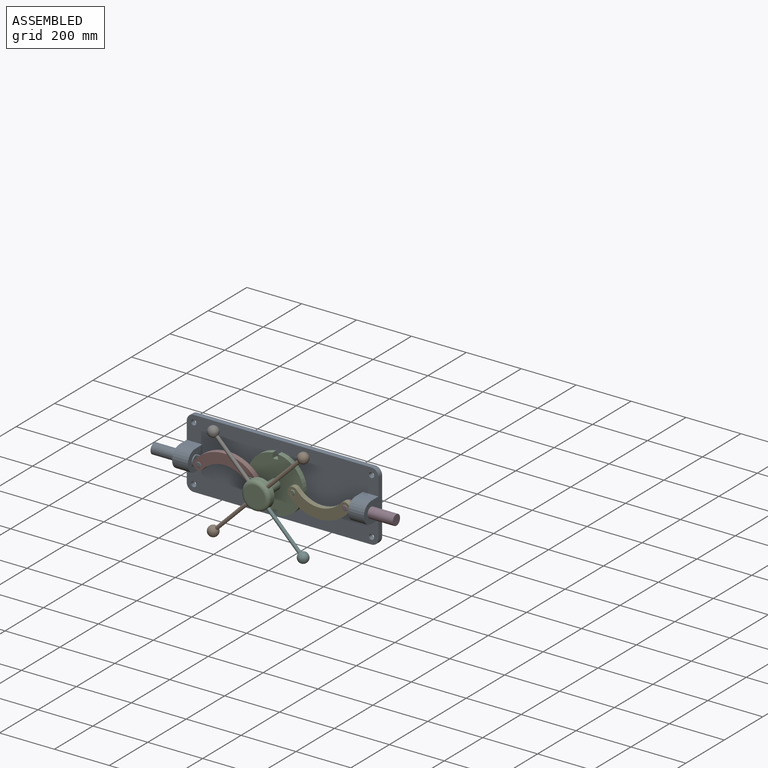
[diagram: assembled view]
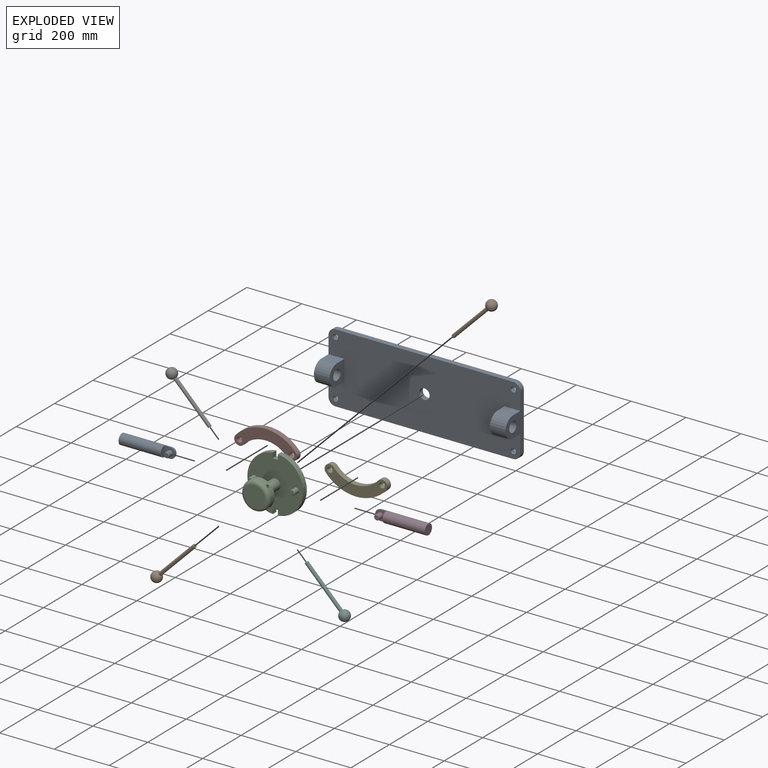
[diagram: exploded view]
GUIDED TOUR — MATED ASSEMBLY (Onshape document 58ec21740626050f5efaa59a, AutoMate assembly 58ec21740626050f5efaa59a_ca36bacddb77515ba9121557_3a69641fb0e58b1cf855f0f5_default)

This assembly has 10 components, labeled P0..P9 below (a component is one placed occurrence of a part; the same part can appear more than once), held together by 11 mates. A mate is a constraint between two components; its type names the relative motion it leaves free:
  CYLINDRICAL — leaves both rotation about and translation along the listed axis free,
  FASTENED — locks the two components together rigidly (no relative motion),
  REVOLUTE — leaves rotation about the listed axis free (a hinge).
Axis/direction vectors are unit vectors and 'through' points are millimeter coordinates, both in the assembly's world frame.

MATES
  1. REVOLUTE "Revolute 4": P4 <-> P2, axis (0.000, 1.000, 0.000) through (38.64, 2.72, 59.60) mm
  2. REVOLUTE "Revolute 1": P2 <-> P0, axis (0.000, 1.000, 0.000) through (-37.56, 40.82, 59.60) mm
  3. REVOLUTE "Revolute 2": P7 <-> P2, axis (0.000, 1.000, 0.000) through (-113.76, 2.72, 59.60) mm
  4. CYLINDRICAL "Cylindrical 2": P8 <-> P0, axis (1.000, 0.000, 0.000) through (-391.55, 2.72, 59.60) mm
  5. FASTENED "Fastened 3": P5 <-> P2, direction (-0.707, 0.000, 0.707) through (-12.95, -86.18, 34.99) mm
  6. REVOLUTE "Revolute 3": P7 <-> P8, axis (0.000, 1.000, 0.000) through (-304.26, 2.72, 59.60) mm
  7. FASTENED "Fastened 1": P2 <-> P1, direction (-0.707, 0.000, -0.707) through (-62.17, -86.18, 34.99) mm
  8. CYLINDRICAL "Cylindrical 1": P3 <-> P0, axis (-1.000, 0.000, 0.000) through (316.43, 2.72, 59.60) mm
  9. REVOLUTE "Revolute 5": P4 <-> P3, axis (0.000, 1.000, 0.000) through (229.14, 2.72, 59.60) mm
  10. FASTENED "Fastened 2": P2 <-> P6, direction (-0.707, 0.000, 0.707) through (-62.17, -86.18, 84.20) mm
  11. FASTENED "Fastened 4": P2 <-> P9, direction (0.707, 0.000, 0.707) through (-12.95, -86.18, 84.20) mm

ASSEMBLY ORDER
  1. P2 — the base component [order heuristic]
  2. P0 — core [order heuristic]
  3. P4 — core [order heuristic]
  4. P7 — core [order heuristic]
  5. P3 — core [order heuristic]
  6. P8 — core [order heuristic]
  7. P1 [order verified]
  8. P6 [order verified]
  9. P9 [order verified]
  10. P5 [order verified]
Order-tag legend:
  [order verified] — this step's position reverses a verified removal order: the component was checked to insert without passing through the ones already placed.
  [order heuristic] — the first 6 components form the assembly's core: parts whose collision-free extraction could not be verified, listed in mate-graph order.

Of the 10 components, 3 carry the full construction recipe — the FeatureScript program that regenerates the part's solid from scratch; the rest are supplied as boundary geometry only.
Each toured component is shown spotlighted twice — in the assembled view, then in the exploded view, where a leader line traces a displaced component back to its assembled socket (saturated green if recipe-attached, orange if geometry-only; every other component desaturated gray) — followed by its recipe or geometry summary and the mates that hold it.
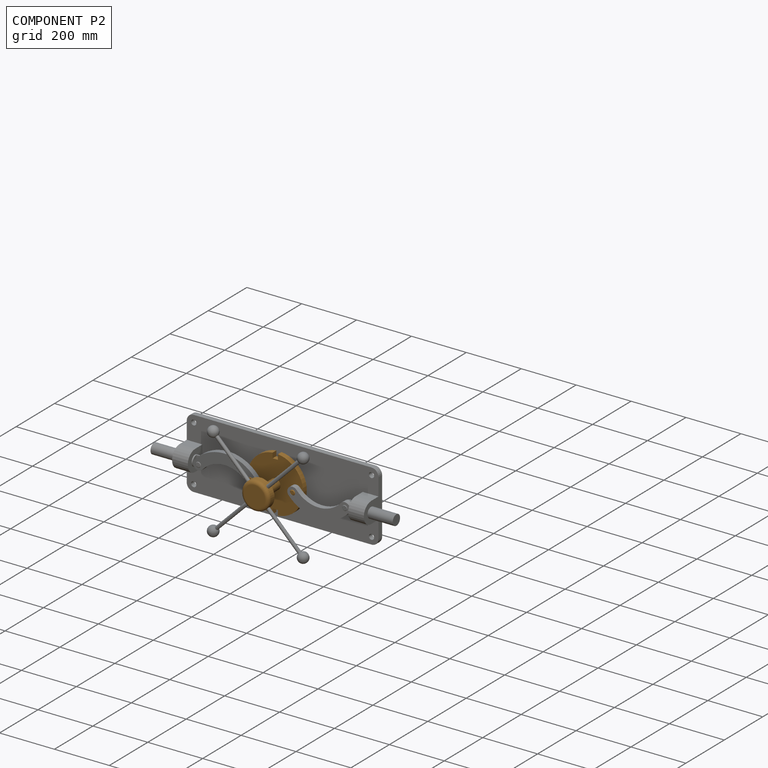
[diagram: component P2 — assembled]
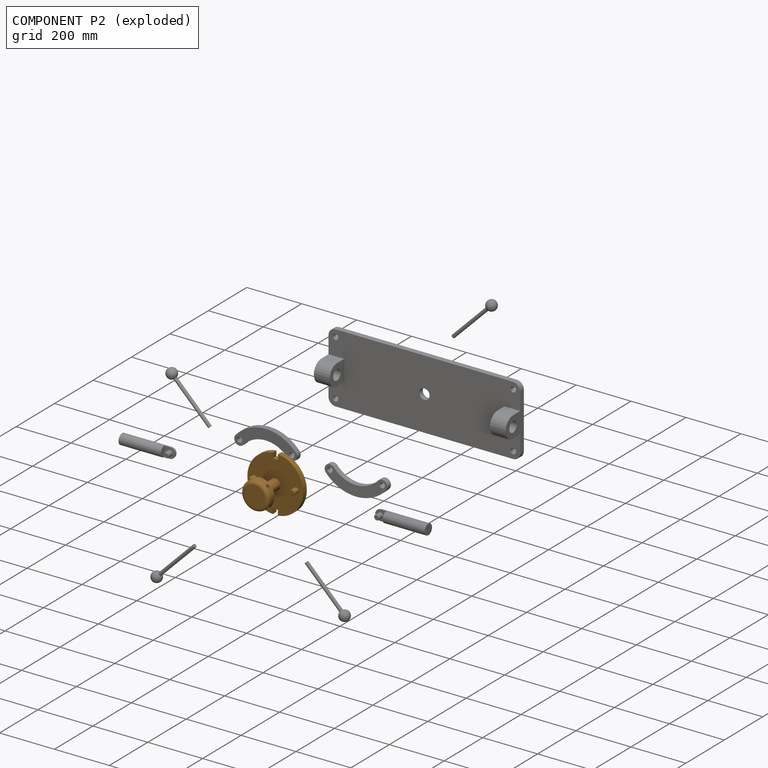
[diagram: component P2 — exploded]
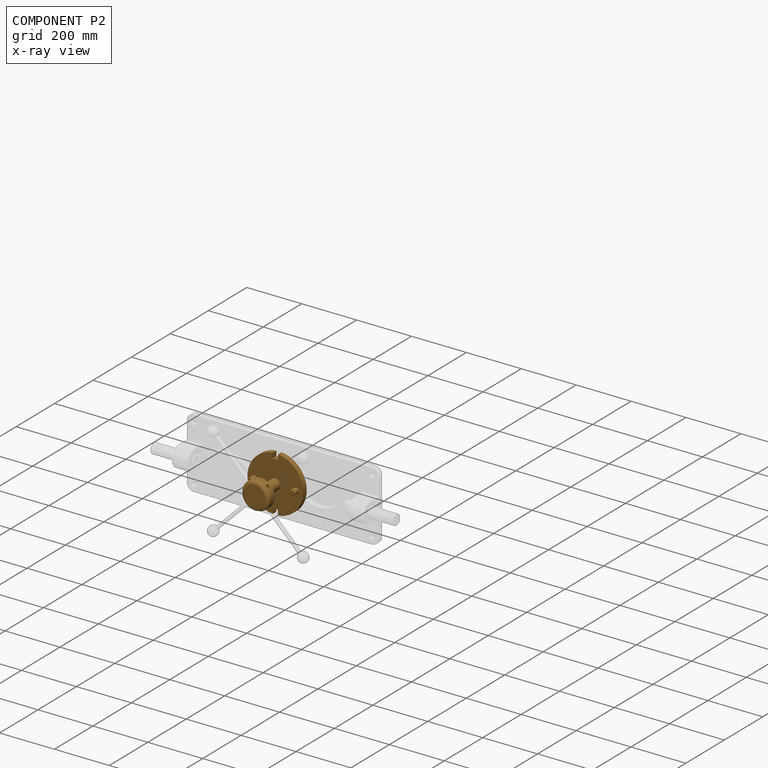
[diagram: component P2 — x-ray view]
COMPONENT P2 — geometry summary (no construction recipe available for this part):
  bounding box: 203.2 x 202.3 x 171.5 mm
  B-rep topology: 1 solid, 33 faces, 142 edges
  volume: 1008938 mm^3 (14% of its bounding box)
  symmetry: 2-fold rotationally symmetric about the y axis; mirror-symmetric across its x mid-plane, z mid-plane
Held by: REVOLUTE mate "Revolute 4" to P4; REVOLUTE mate "Revolute 1" to P0; REVOLUTE mate "Revolute 2" to P7; FASTENED mate "Fastened 3" to P5; FASTENED mate "Fastened 1" to P1; FASTENED mate "Fastened 2" to P6; FASTENED mate "Fastened 4" to P9.
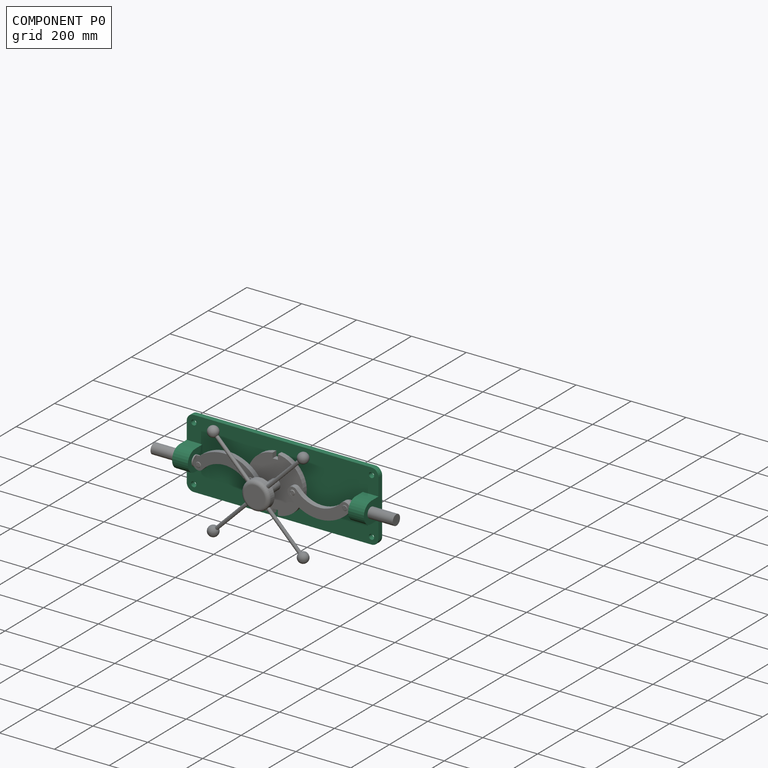
[diagram: component P0 — assembled]
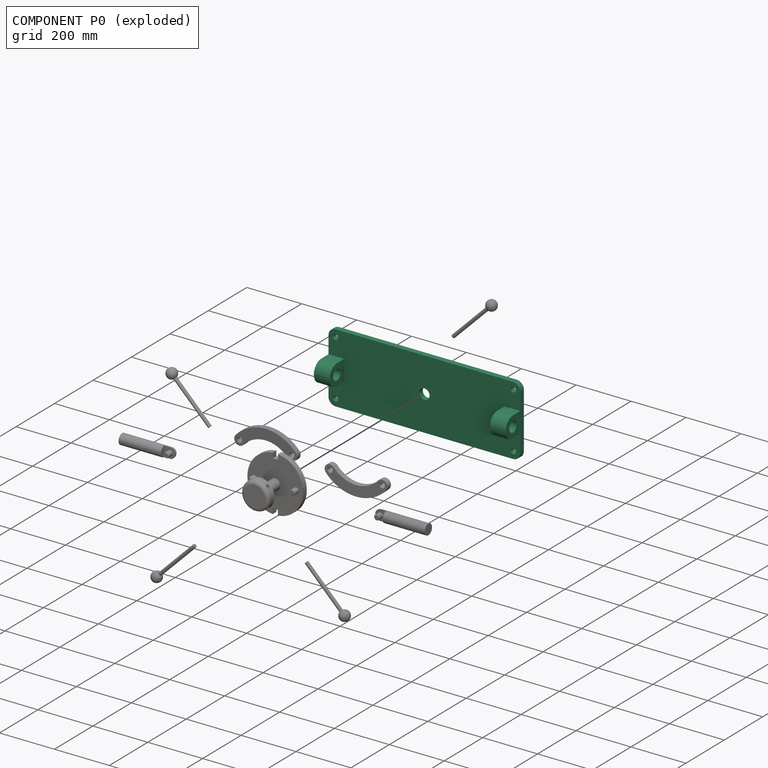
[diagram: component P0 — exploded]
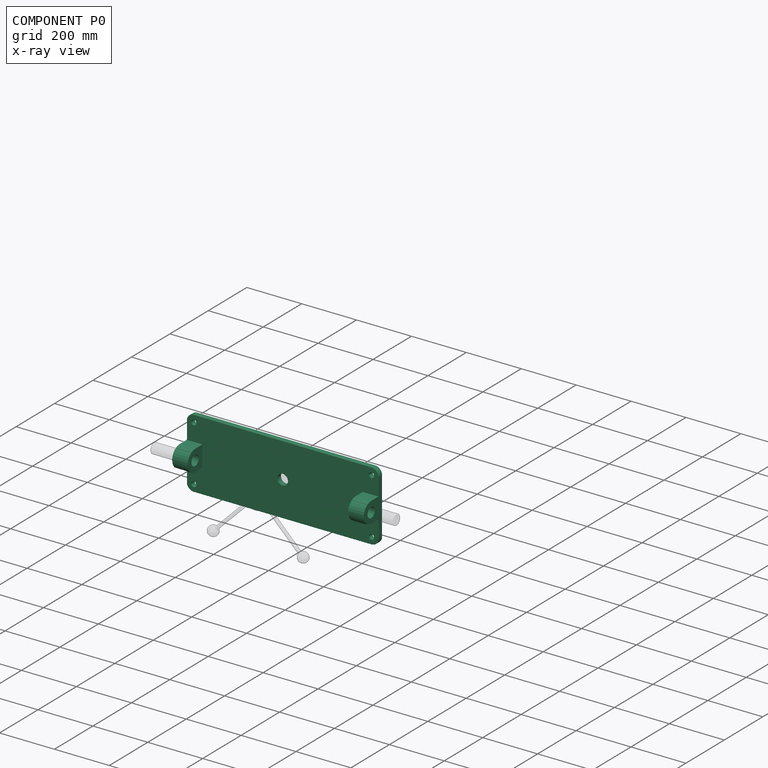
[diagram: component P0 — x-ray view]
COMPONENT P0 — recipe-attached (CADFS 00697022, mesh-verified: the recipe's output STEP matches this component's geometry to below the mesh-comparison resolution (tessellation chordal tolerance ~1.12 mm)).
Held by: REVOLUTE mate "Revolute 1" to P2; CYLINDRICAL mate "Cylindrical 2" to P8; CYLINDRICAL mate "Cylindrical 1" to P3.
Construction recipe (FeatureScript — the CAD program that rebuilds this solid; sketch coordinates are in the units given by the * unit suffixes, e.g. mm):

FeatureScript 1511;
import(path : "onshape/std/geometry.fs", version : "1511.0");
import(path : "onshape/std/common.fs", version : "1511.0");
const mm = millimeter;
const VERTEX = EntityType.VERTEX;
const EDGE = EntityType.EDGE;
const FACE = EntityType.FACE;
const BODY = EntityType.BODY;
function v(x, y){return vector(x, y);}
function OD(order){return orderDisambiguation(order);}
function OSD(set){return originalSetDisambiguation(set);}
function TD(topology){return topologyDisambiguation(topology);}
function TDD(query){return trueDependencyDisambiguation(query);}
function sQuery(a, b, c) {return sketchEntityQuery(a, b, c);}

annotation { "Feature Type Name" : "Feature", "Feature Type Description" : "" }
export const myFeature = defineFeature(function(context is Context, id is Id, definition is map)
    precondition{}
    {
        {
            var Q0;
            Q0=qCreatedBy(makeId("Front.planeOp"),FACE);
            var sketch = newSketch(context, id + "F0", { "sketchPlane" : qUnion([Q0])});
            skLineSegment(sketch, "E0.bottom", {"start": v(323.85, -127) * mm, "end": v(-323.85, -127) * mm});
            skLineSegment(sketch, "E0.top", {"start": v(323.85, 127) * mm, "end": v(-323.85, 127) * mm});
            skLineSegment(sketch, "E0.left", {"start": v(349.25, -101.6) * mm, "end": v(349.25, 101.6) * mm});
            skLineSegment(sketch, "E0.right", {"start": v(-349.25, -101.6) * mm, "end": v(-349.25, 101.6) * mm});
            skPoint(sketch, "E0.middle", {"position": v(0, 0) * mm});
            skLineSegment(sketch, "E1", {"start": v(-349.25, 0) * mm, "end": v(349.25, 0) * mm});
            skLineSegment(sketch, "E2", {"start": v(0, -127) * mm, "end": v(0, 127) * mm});
            skCircle(sketch, "E3", {"center": v(0, 0) * mm, "radius": 19.05 * mm});
            skCircle(sketch, "E4", {"center": v(-323.85, 101.6) * mm, "radius": 9.53 * mm});
            skCircle(sketch, "E5", {"center": v(-323.85, -101.6) * mm, "radius": 9.53 * mm});
            skCircle(sketch, "E6", {"center": v(323.85, 101.6) * mm, "radius": 9.53 * mm});
            skCircle(sketch, "E7", {"center": v(323.85, -101.6) * mm, "radius": 9.53 * mm});
            skPoint(sketch, "E8.visualSharp", {"position": v(-349.25, 127) * mm});
            skArc(sketch, "E8.filletArc", {"start": v(-323.85, 127) * mm, "mid": v(-341.81, 119.56) * mm, "end": v(-349.25, 101.6) * mm});
            skPoint(sketch, "E9.visualSharp", {"position": v(349.25, 127) * mm});
            skArc(sketch, "E9.filletArc", {"start": v(349.25, 101.6) * mm, "mid": v(341.81, 119.56) * mm, "end": v(323.85, 127) * mm});
            skPoint(sketch, "E10.visualSharp", {"position": v(349.25, -127) * mm});
            skArc(sketch, "E10.filletArc", {"start": v(323.85, -127) * mm, "mid": v(341.81, -119.56) * mm, "end": v(349.25, -101.6) * mm});
            skPoint(sketch, "E11.visualSharp", {"position": v(-349.25, -127) * mm});
            skArc(sketch, "E11.filletArc", {"start": v(-349.25, -101.6) * mm, "mid": v(-341.81, -119.56) * mm, "end": v(-323.85, -127) * mm});
            skSolve(sketch);
        }
        {
            var Q0;
            Q0=makeQuery(id+"F0.imprint","IMPRINT",FACE,{"disambiguationData":[TD([[makeQuery(id+"F0.imprint","IMPRINT",EDGE,{"derivedFrom":sQuery(id+"F0.wireOp",EDGE,"E6")}),-1.0]])]});
            var Q1;
            Q1=makeQuery(id+"F0.imprint","IMPRINT",FACE,{"disambiguationData":[TD([[makeQuery(id+"F0.imprint","IMPRINT",EDGE,{"derivedFrom":sQuery(id+"F0.wireOp",EDGE,"E4")}),-1.0]])]});
            var Q2;
            Q2=makeQuery(id+"F0.imprint","IMPRINT",FACE,{"disambiguationData":[TD([[makeQuery(id+"F0.imprint","IMPRINT",EDGE,{"derivedFrom":sQuery(id+"F0.wireOp",EDGE,"E5")}),-1.0]])]});
            var Q3;
            Q3=makeQuery(id+"F0.imprint","IMPRINT",FACE,{"disambiguationData":[TD([[makeQuery(id+"F0.imprint","IMPRINT",EDGE,{"derivedFrom":sQuery(id+"F0.wireOp",EDGE,"E7")}),-1.0]])]});
            extrude(context, id + "F1", {"entities" : qUnion([Q0, Q1, Q2, Q3]), "endBound" : BoundingType.SYMMETRIC, "depth" : 19.05 * mm});
        }
        {
            var Q0;
            Q0=makeQuery(id+"F1.opExtrude","SWEPT_FACE",FACE,{"disambiguationData":[OSD([sQuery(id+"F0.wireOp",EDGE,"E0.left")])]});
            cPlane(context, id + "F2", {"entities" : qUnion([Q0]), "cplaneType" : CPlaneType.OFFSET, "offset" : 0 * mm, "width" : 152.4 * mm, "height" : 152.4 * mm});
        }
        {
            var Q0;
            Q0=qCreatedBy(id+"F2.planeOp",FACE);
            var sketch = newSketch(context, id + "F3", { "sketchPlane" : qUnion([Q0])});
            skLineSegment(sketch, "E12.0", {"start": v(-9.53, -101.6) * mm, "end": v(-9.53, 101.6) * mm});
            skLineSegment(sketch, "E13", {"start": v(-9.53, 0) * mm, "end": v(-47.62, 0) * mm});
            skCircle(sketch, "E14", {"center": v(-47.62, 0) * mm, "radius": 19.05 * mm});
            skCircle(sketch, "E15", {"center": v(-47.62, 0) * mm, "radius": 38.1 * mm});
            skLineSegment(sketch, "E16", {"start": v(-47.62, 38.1) * mm, "end": v(-9.53, 38.1) * mm});
            skLineSegment(sketch, "E17", {"start": v(-47.62, -38.1) * mm, "end": v(-9.53, -38.1) * mm});
            skSolve(sketch);
        }
        {
            var Q0;
            Q0 = qSketchRegion(id + "F3", true);
            extrude(context, id + "F4", {"entities" : qUnion([Q0]), "operationType" : NewBodyOperationType.ADD, "oppositeDirection" : true, "depth" : 57.15 * mm, "offsetDistance" : 25.4 * mm});
        }
        {
            var Q0;
            Q0=makeQuery(id+"F1.opExtrude","SWEPT_FACE",FACE,{"disambiguationData":[OSD([sQuery(id+"F0.wireOp",EDGE,"E0.right")])]});
            cPlane(context, id + "F5", {"entities" : qUnion([Q0]), "cplaneType" : CPlaneType.OFFSET, "offset" : 0 * mm, "width" : 152.4 * mm, "height" : 152.4 * mm});
        }
        {
            var Q0;
            Q0=qCreatedBy(id+"F5.planeOp",FACE);
            var sketch = newSketch(context, id + "F6", { "sketchPlane" : qUnion([Q0])});
            skLineSegment(sketch, "E18.0", {"start": v(9.53, -101.6) * mm, "end": v(9.53, 101.6) * mm});
            skLineSegment(sketch, "E19", {"start": v(9.53, 0) * mm, "end": v(47.62, 0) * mm});
            skCircle(sketch, "E20", {"center": v(47.62, 0) * mm, "radius": 19.05 * mm});
            skCircle(sketch, "E21", {"center": v(47.62, 0) * mm, "radius": 38.1 * mm});
            skLineSegment(sketch, "E22", {"start": v(47.62, 38.1) * mm, "end": v(9.53, 38.1) * mm});
            skLineSegment(sketch, "E23", {"start": v(47.63, -38.1) * mm, "end": v(9.53, -38.1) * mm});
            skSolve(sketch);
        }
        {
            var Q0;
            Q0=makeQuery(id+"F6.imprint","IMPRINT",FACE,{"disambiguationData":[TD([[makeQuery(id+"F6.imprint","IMPRINT",EDGE,{"derivedFrom":sQuery(id+"F6.wireOp",EDGE,"E20")}),-1.0]])]});
            var Q1;
            {var subQ3=sQuery(id+"F6.wireOp",EDGE,"E22");Q1=makeQuery(id+"F6.imprint","IMPRINT",FACE,{"disambiguationData":[TD([[makeQuery(id+"F6.imprint","IMPRINT",EDGE,{"derivedFrom":subQ3}),1.0]])]});}
            var Q2;
            {var subQ3=sQuery(id+"F6.wireOp",EDGE,"E23");Q2=makeQuery(id+"F6.imprint","IMPRINT",FACE,{"disambiguationData":[TD([[makeQuery(id+"F6.imprint","IMPRINT",EDGE,{"derivedFrom":subQ3}),-1.0]])]});}
            extrude(context, id + "F7", {"entities" : qUnion([Q0, Q1, Q2]), "operationType" : NewBodyOperationType.ADD, "oppositeDirection" : true, "depth" : 57.15 * mm, "offsetDistance" : 25.4 * mm});
        }
    });
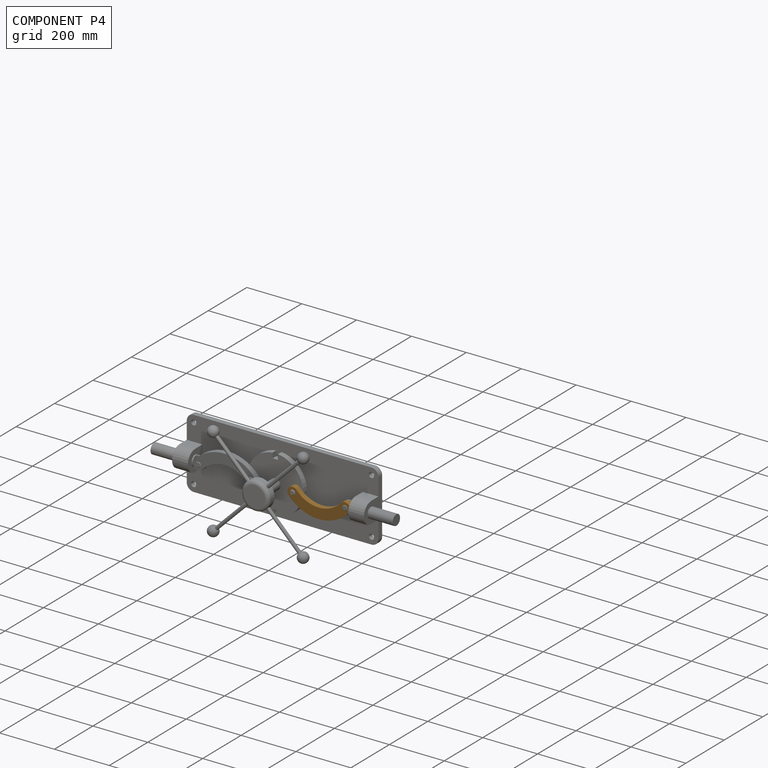
[diagram: component P4 — assembled]
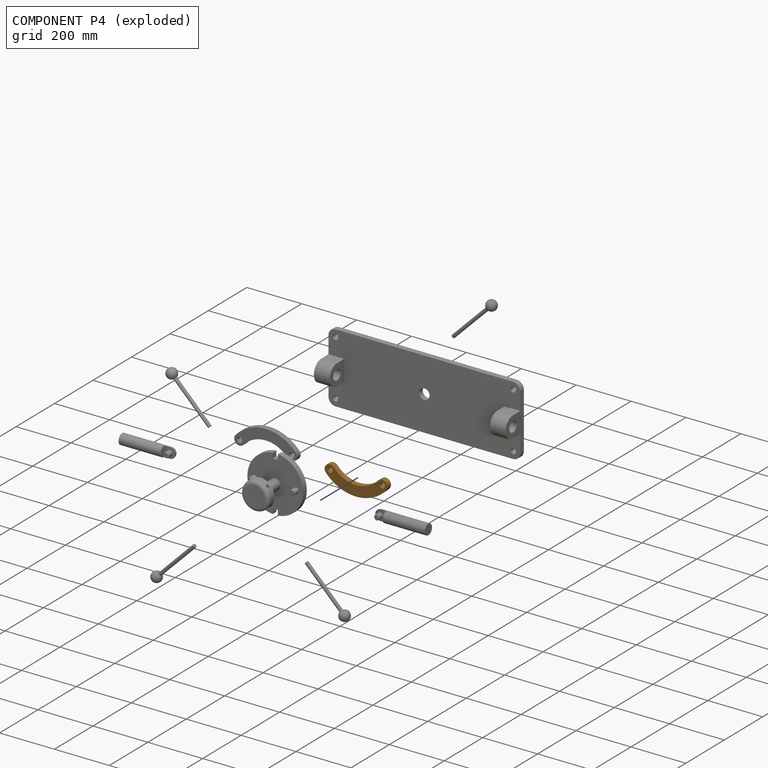
[diagram: component P4 — exploded]
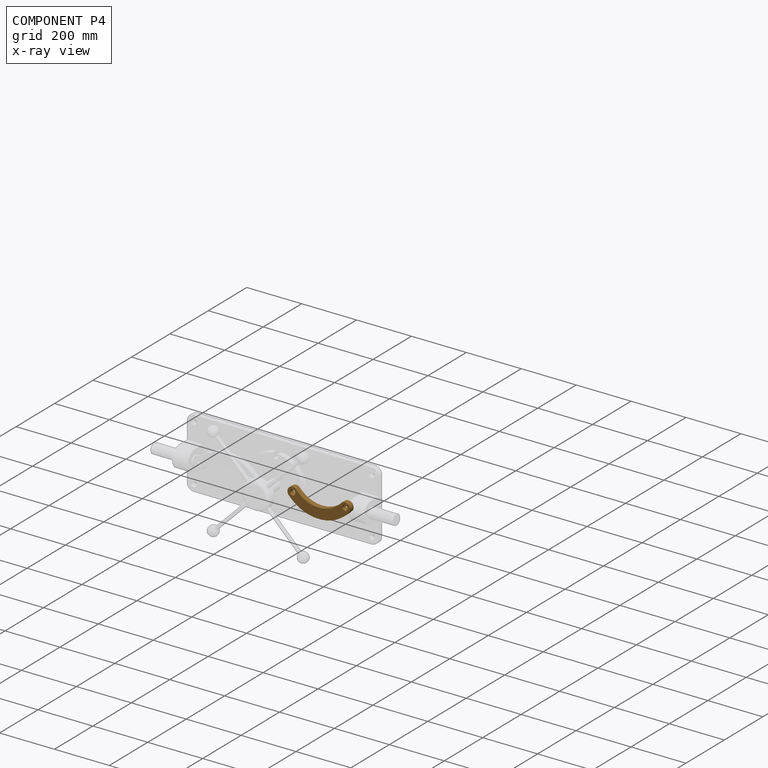
[diagram: component P4 — x-ray view]
COMPONENT P4 — geometry summary (no construction recipe available for this part):
  bounding box: 228.6 x 81.4 x 19.1 mm
  B-rep topology: 1 solid, 8 faces, 36 edges
  volume: 167205 mm^3 (47% of its bounding box)
  symmetry: 2-fold rotationally symmetric about the z axis; mirror-symmetric across its x mid-plane, y mid-plane
Held by: REVOLUTE mate "Revolute 4" to P2; REVOLUTE mate "Revolute 5" to P3.
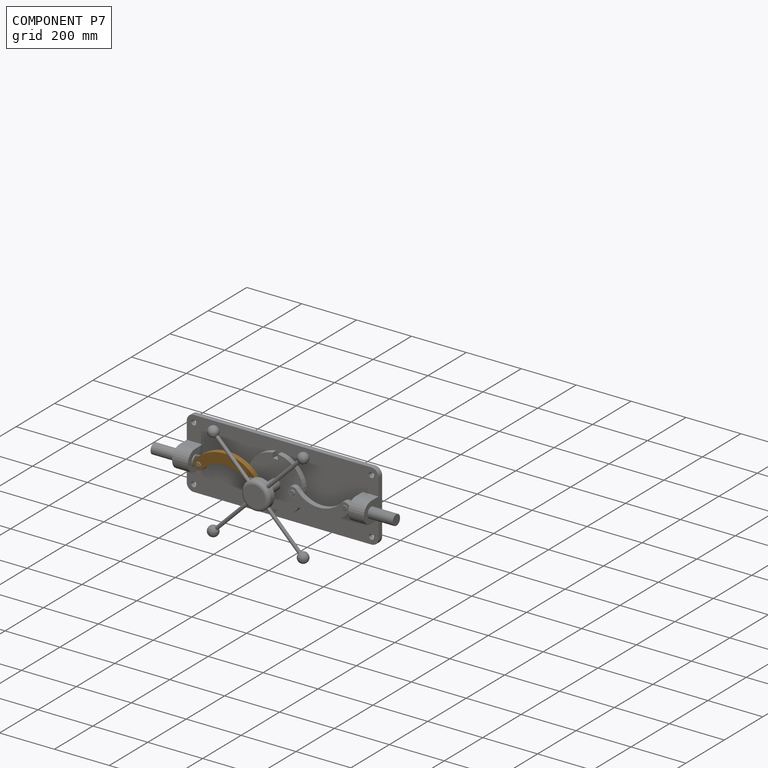
[diagram: component P7 — assembled]
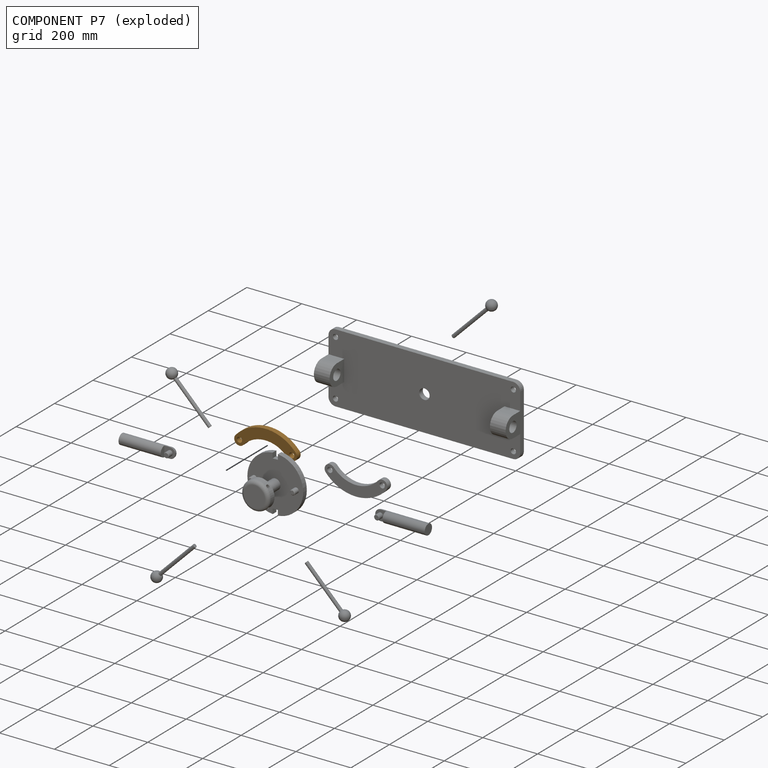
[diagram: component P7 — exploded]
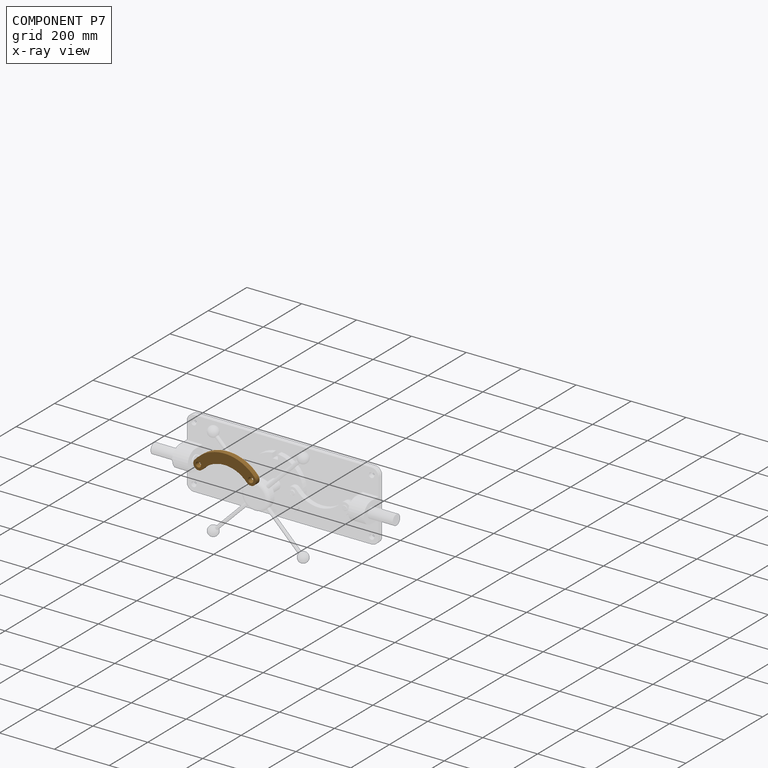
[diagram: component P7 — x-ray view]
COMPONENT P7 — geometry summary (no construction recipe available for this part):
  bounding box: 228.6 x 81.4 x 19.1 mm
  B-rep topology: 1 solid, 8 faces, 36 edges
  volume: 167205 mm^3 (47% of its bounding box)
  symmetry: 2-fold rotationally symmetric about the z axis; mirror-symmetric across its x mid-plane, y mid-plane
Held by: REVOLUTE mate "Revolute 2" to P2; REVOLUTE mate "Revolute 3" to P8.
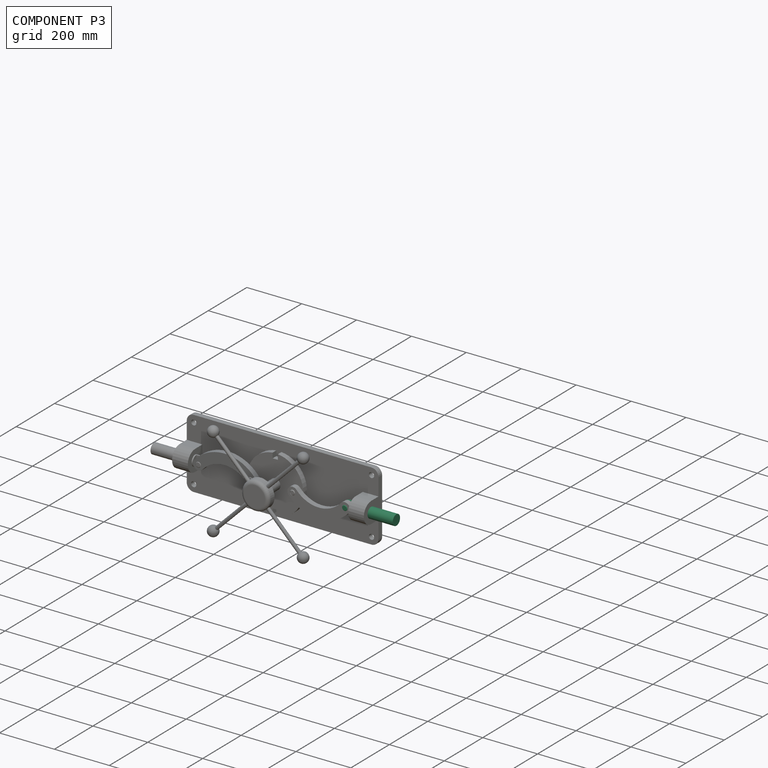
[diagram: component P3 — assembled]
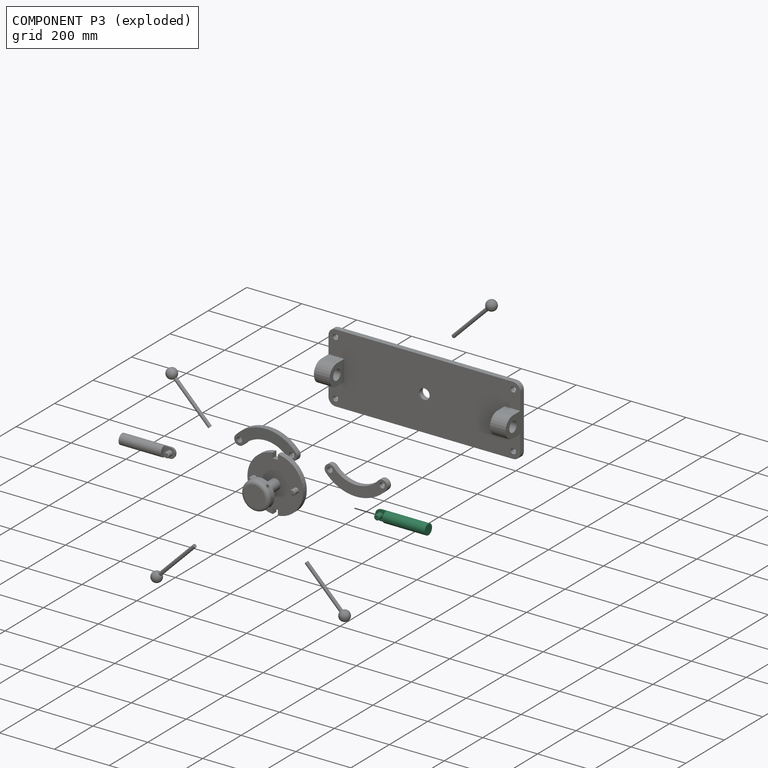
[diagram: component P3 — exploded]
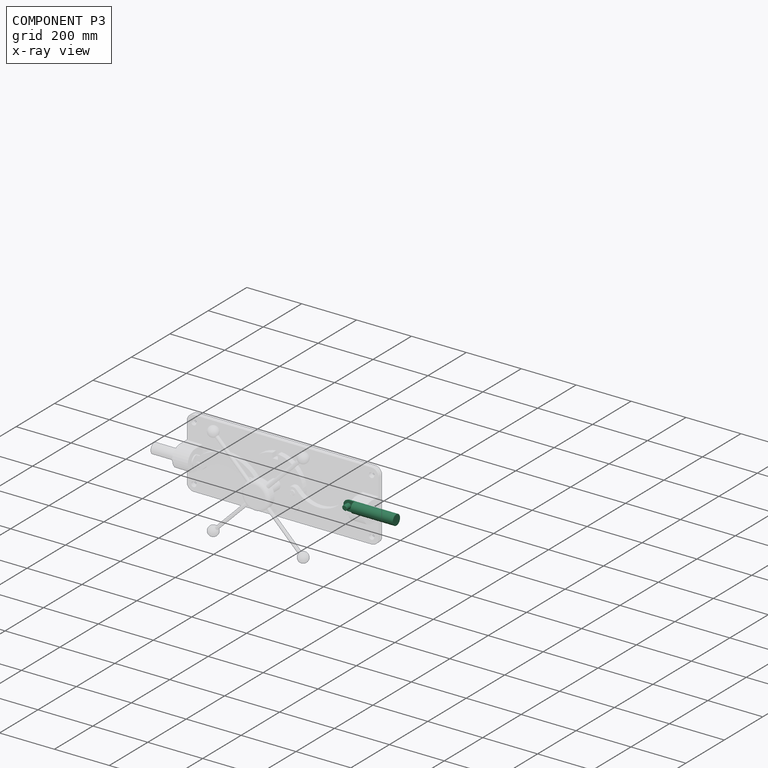
[diagram: component P3 — x-ray view]
COMPONENT P3 — recipe-attached (CADFS 00696993, mesh-verified: the recipe's output STEP matches this component's geometry to below the mesh-comparison resolution (tessellation chordal tolerance ~0.302 mm)).
Held by: CYLINDRICAL mate "Cylindrical 1" to P0; REVOLUTE mate "Revolute 5" to P4.
Construction recipe (FeatureScript — the CAD program that rebuilds this solid; sketch coordinates are in the units given by the * unit suffixes, e.g. mm):

FeatureScript 1821;
import(path : "onshape/std/geometry.fs", version : "1821.0");
import(path : "onshape/std/common.fs", version : "1821.0");
const mm = millimeter;
const VERTEX = EntityType.VERTEX;
const EDGE = EntityType.EDGE;
const FACE = EntityType.FACE;
const BODY = EntityType.BODY;
function v(x, y){return vector(x, y);}
function OD(order){return orderDisambiguation(order);}
function OSD(set){return originalSetDisambiguation(set);}
function TD(topology){return topologyDisambiguation(topology);}
function TDD(query){return trueDependencyDisambiguation(query);}
function sQuery(a, b, c) {return sketchEntityQuery(a, b, c);}

annotation { "Feature Type Name" : "Feature", "Feature Type Description" : "" }
export const myFeature = defineFeature(function(context is Context, id is Id, definition is map)
    precondition{}
    {
        {
            var Q0;
            Q0=qCreatedBy(makeId("Front.planeOp"),FACE);
            var sketch = newSketch(context, id + "F0", { "sketchPlane" : qUnion([Q0])});
            skCircle(sketch, "E0", {"center": v(0, 0) * mm, "radius": 19.05 * mm});
            skSolve(sketch);
        }
        {
            var Q0;
            Q0=makeQuery(id+"F0.imprint","IMPRINT",FACE,{"disambiguationData":[TD([[makeQuery(id+"F0.imprint","IMPRINT",EDGE,{"derivedFrom":sQuery(id+"F0.wireOp",EDGE,"E0")}),1.0]])]});
            extrude(context, id + "F1", {"entities" : qUnion([Q0]), "depth" : 174.58 * mm});
        }
        {
            var Q0;
            Q0=makeQuery(id+"F1.opExtrude","CAP_FACE",FACE,{"disambiguationData":[OSD([sQuery(id+"F0.wireOp",EDGE,"E0")])],"isStart":true});
            var sketch = newSketch(context, id + "F2", { "sketchPlane" : qUnion([Q0])});
            skLineSegment(sketch, "E1", {"start": v(0, 0) * mm, "end": v(0, 21.19) * mm});
            skLineSegment(sketch, "E2", {"start": v(0, 21.19) * mm, "end": v(0, -25.37) * mm});
            skLineSegment(sketch, "E3", {"start": v(-20.84, 0) * mm, "end": v(39.79, 0) * mm});
            skSolve(sketch);
        }
        {
            var Q0;
            {var subQ0=sQuery(id+"F2.wireOp",EDGE,"E3");var subQ1=sQuery(id+"F2.wireOp",EDGE,"E2");var subQ2=makeQuery(id+"F2.imprint","INTERSECT",VERTEX,{"derivedFrom":[subQ1,subQ0]});Q0=makeQuery(id+"F2.imprint","IMPRINT",FACE,{"disambiguationData":[TD([[makeQuery(id+"F2.imprint","IMPRINT",EDGE,{"disambiguationData":[TD([[subQ2,-1.0]])],"derivedFrom":subQ1}),1.0]])]});}
            var Q1;
            Q1=sQuery(id+"F2.wireOp",EDGE,"E2");
            revolve(context, id + "F3", {"operationType" : NewBodyOperationType.ADD, "entities" : qUnion([Q0]), "axis" : qUnion([Q1]), "revolveType" : RevolveType.FULL});
        }
        {
            var Q0;
            Q0=makeQuery(id+"F1.opExtrude","CAP_FACE",FACE,{"disambiguationData":[OSD([sQuery(id+"F0.wireOp",EDGE,"E0")])],"isStart":true});
            extrude(context, id + "F4", {"entities" : qUnion([Q0]), "operationType" : NewBodyOperationType.REMOVE, "oppositeDirection" : true, "depth" : 20.83 * mm});
        }
        {
            var Q0;
            {var subQ0=sQuery(id+"F2.wireOp",EDGE,"E3");Q0=makeQuery(id+"F4.boolean.opBoolean","MERGE",FACE,{"derivedFrom":[makeQuery(id+"F3.opRevolve","SWEPT_FACE",FACE,{"disambiguationData":[OSD([subQ0])]}),makeQuery(id+"F4.opExtrude","SWEPT_FACE",FACE,{"disambiguationData":[OSD([sQuery(id+"F0.wireOp",EDGE,"E0"),subQ0])]})]});}
            var sketch = newSketch(context, id + "F5", { "sketchPlane" : qUnion([Q0])});
            skCircle(sketch, "E4", {"center": v(0, 0) * mm, "radius": 9.53 * mm});
            skSolve(sketch);
        }
        {
            var Q0;
            Q0=makeQuery(id+"F5.imprint","IMPRINT",FACE,{"disambiguationData":[TD([[makeQuery(id+"F5.imprint","IMPRINT",EDGE,{"derivedFrom":sQuery(id+"F5.wireOp",EDGE,"E4")}),1.0]])]});
            extrude(context, id + "F6", {"entities" : qUnion([Q0]), "operationType" : NewBodyOperationType.ADD, "depth" : 20.83 * mm});
        }
        {
            var Q0;
            Q0=makeQuery(id+"F6.opExtrude","CAP_EDGE",EDGE,{"disambiguationData":[OSD([sQuery(id+"F5.wireOp",EDGE,"E4")])],"isStart":false});
            chamfer(context, id + "F7", {"entities" : qUnion([Q0]), "chamferType" : ChamferType.OFFSET_ANGLE, "width" : 1.52 * mm, "oppositeDirection" : false, "angle" : 45 * degree, "tangentPropagation" : true});
        }
    });
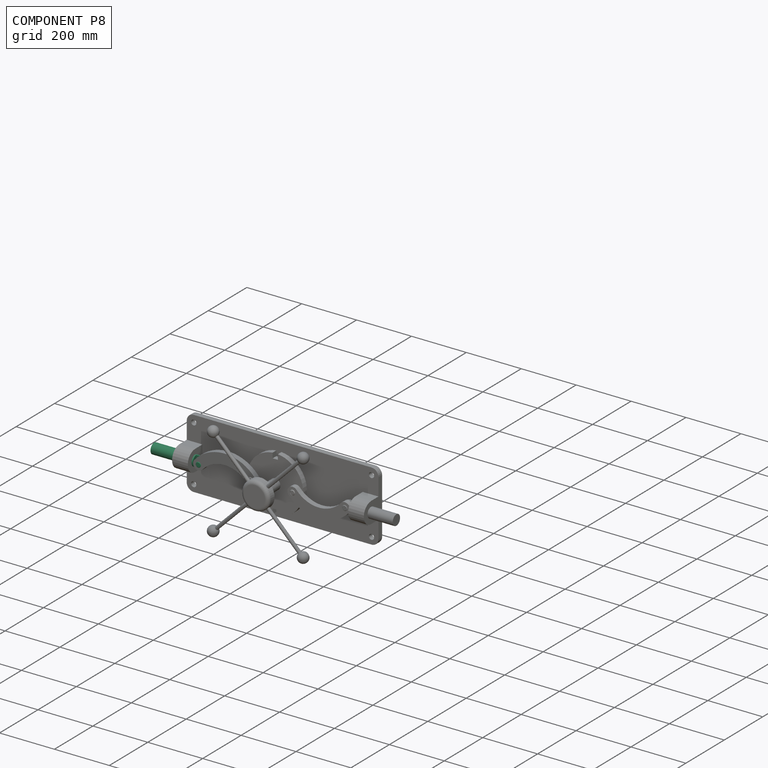
[diagram: component P8 — assembled]
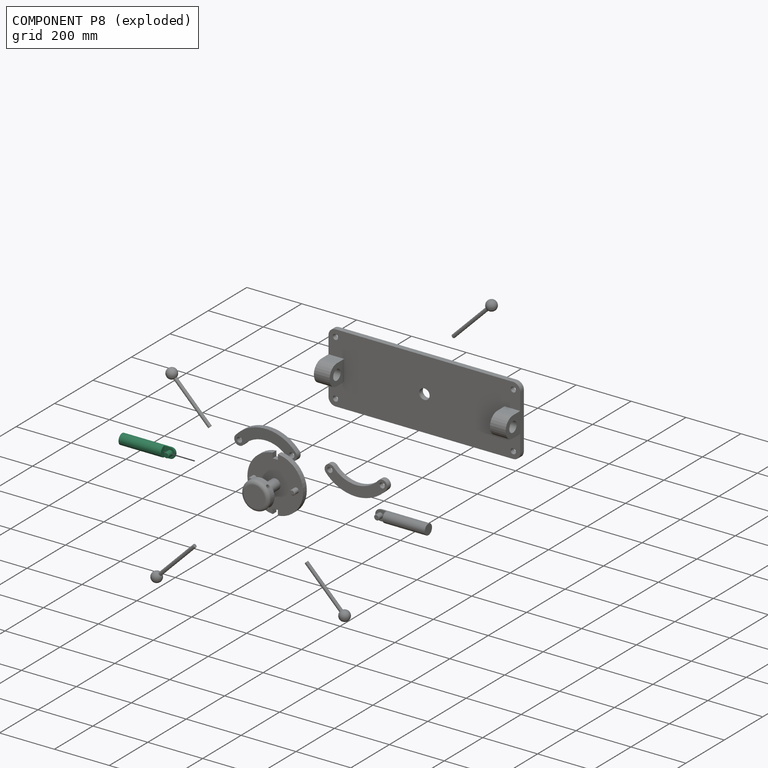
[diagram: component P8 — exploded]
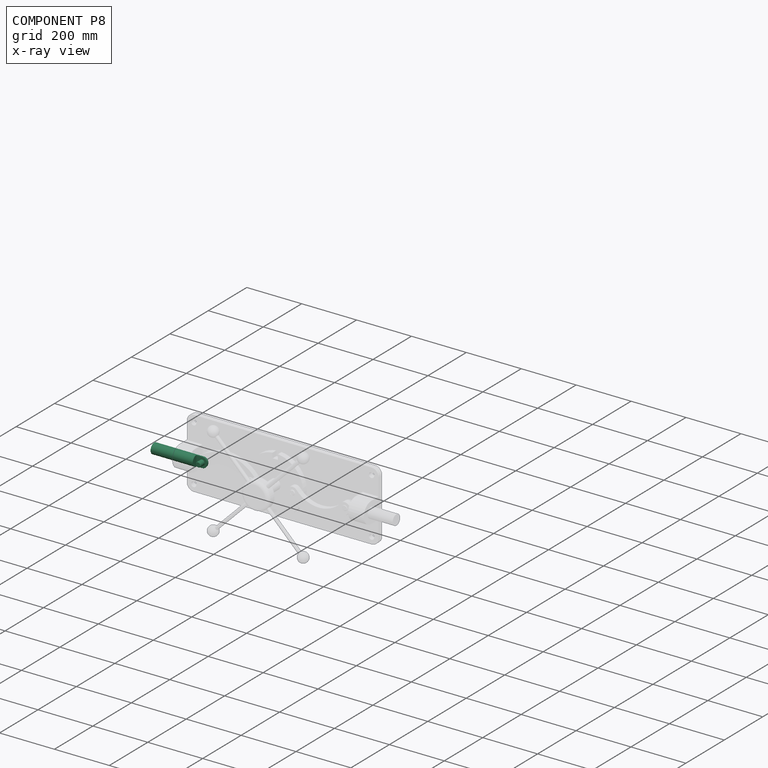
[diagram: component P8 — x-ray view]
COMPONENT P8 — same part as P3 (CADFS 00696993); its construction recipe is shown at P3.
Held by: CYLINDRICAL mate "Cylindrical 2" to P0; REVOLUTE mate "Revolute 3" to P7.
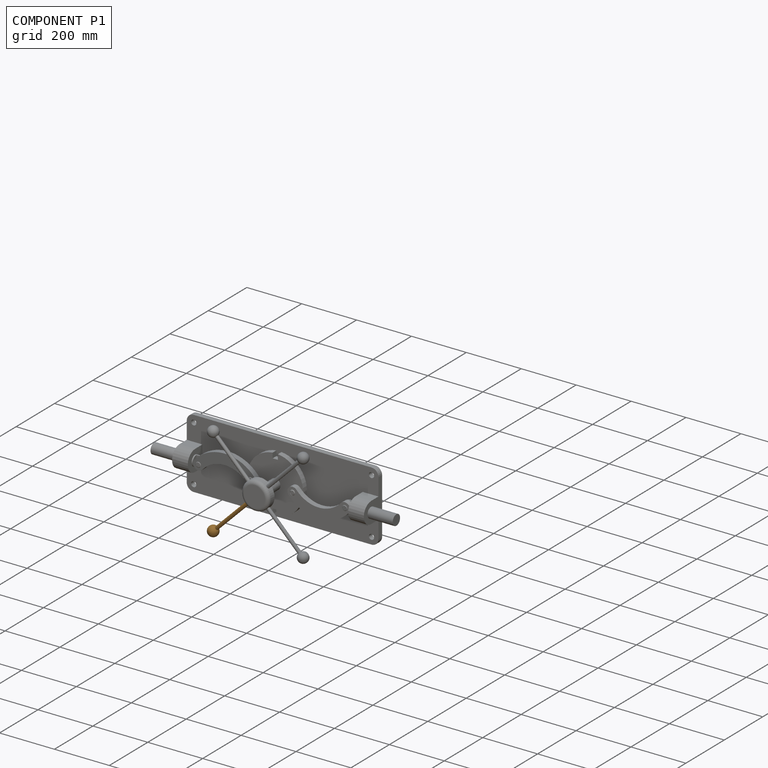
[diagram: component P1 — assembled]
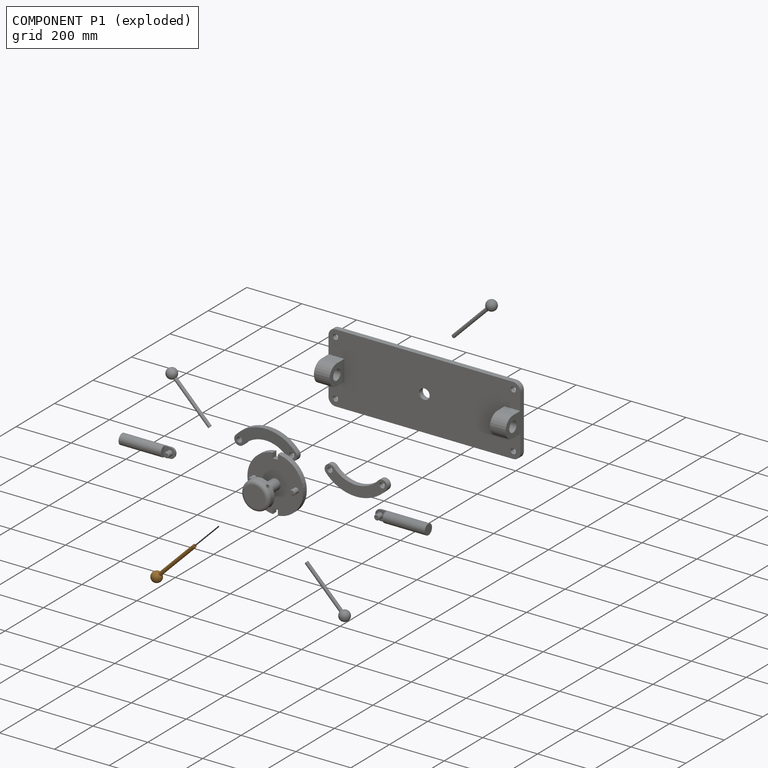
[diagram: component P1 — exploded]
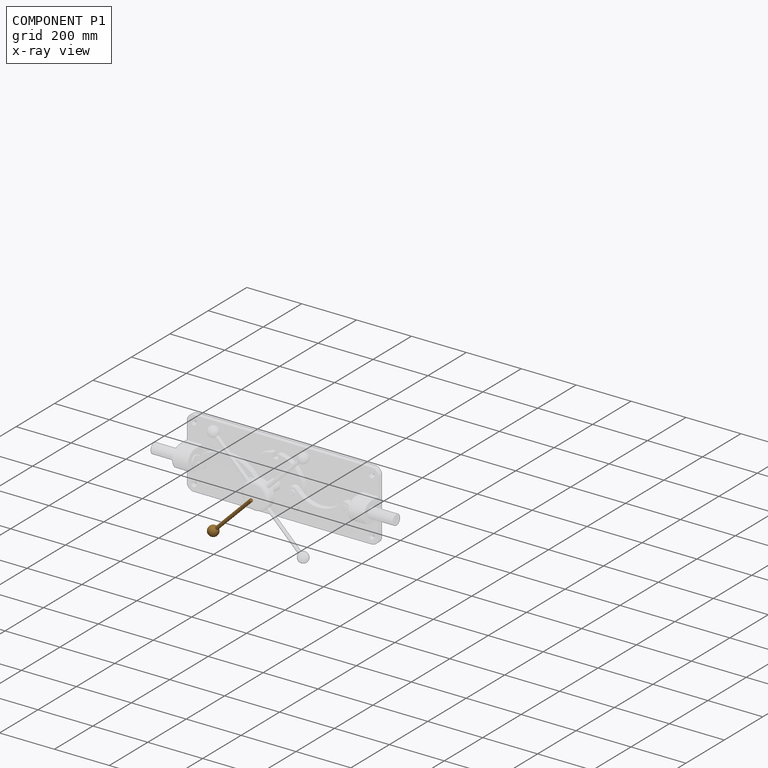
[diagram: component P1 — x-ray view]
COMPONENT P1 — geometry summary (no construction recipe available for this part):
  bounding box: 215.9 x 38.1 x 38.1 mm
  B-rep topology: 1 solid, 3 faces, 11 edges
  volume: 51550 mm^3 (16% of its bounding box)
  symmetry: revolution-symmetric about the y axis through its bounding-box center; mirror-symmetric across its x mid-plane, z mid-plane
Held by: FASTENED mate "Fastened 1" to P2.
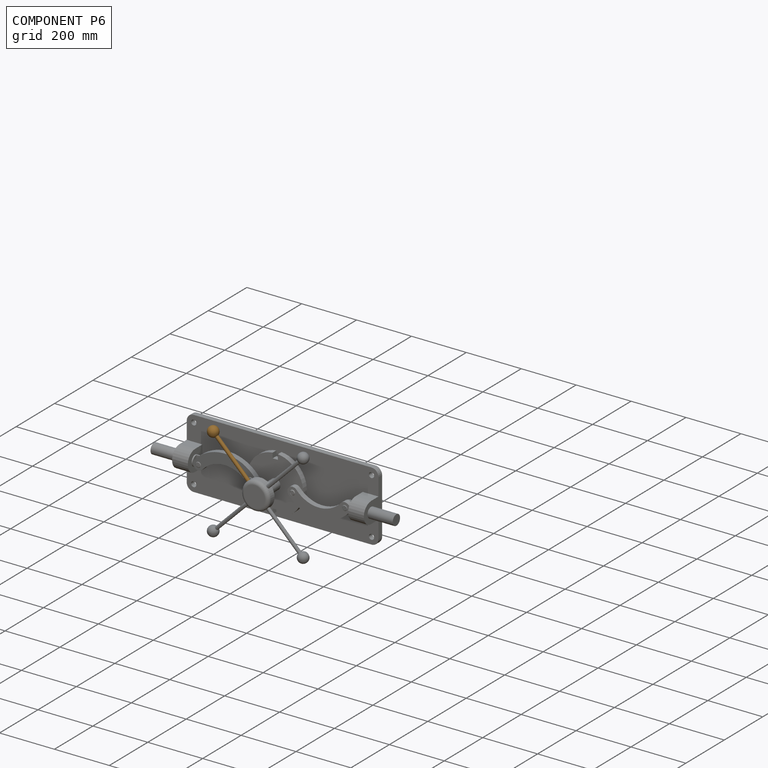
[diagram: component P6 — assembled]
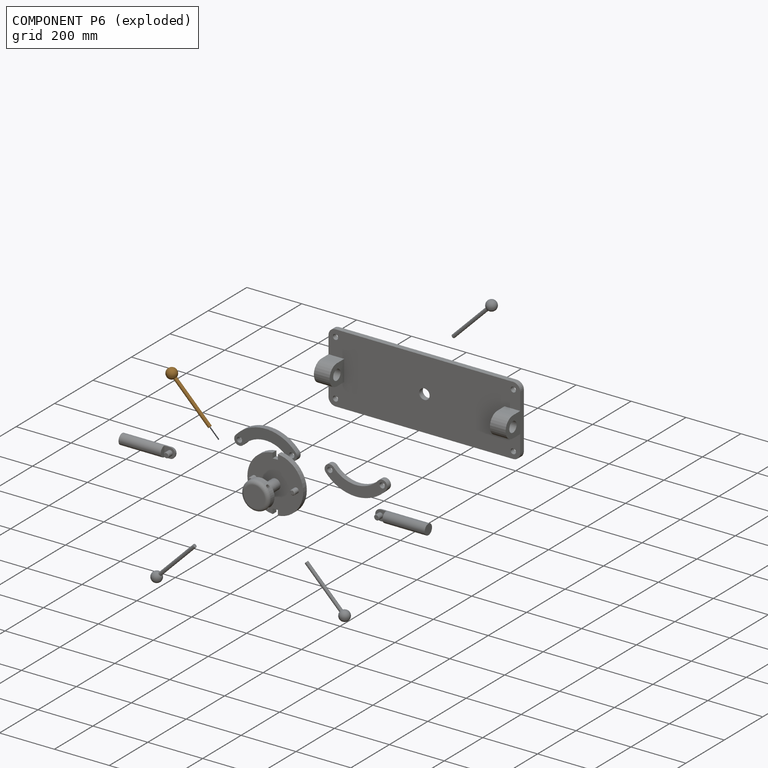
[diagram: component P6 — exploded]
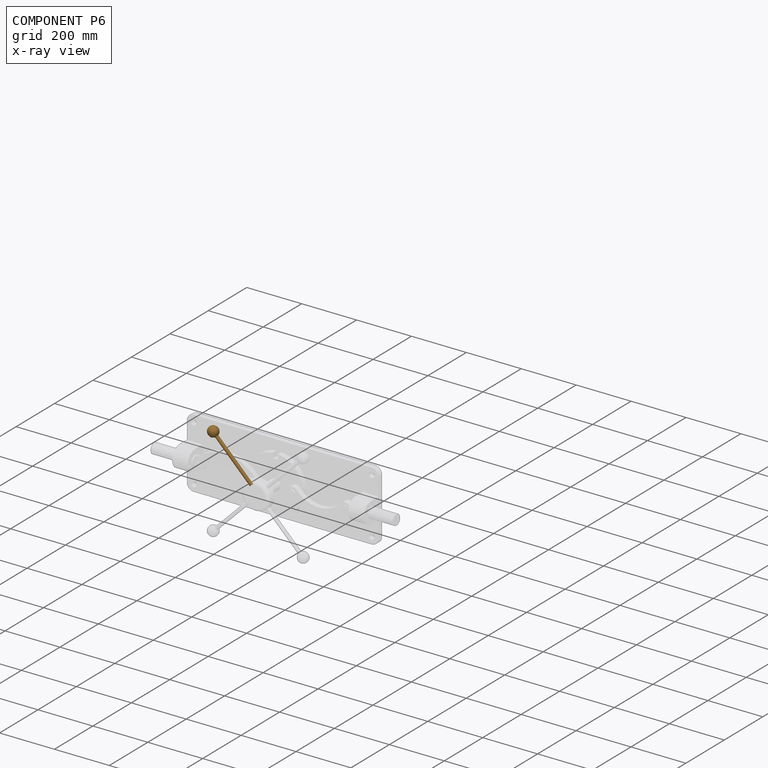
[diagram: component P6 — x-ray view]
COMPONENT P6 — geometry summary (no construction recipe available for this part):
  bounding box: 215.9 x 38.1 x 38.1 mm
  B-rep topology: 1 solid, 3 faces, 11 edges
  volume: 51550 mm^3 (16% of its bounding box)
  symmetry: revolution-symmetric about the y axis through its bounding-box center; mirror-symmetric across its x mid-plane, z mid-plane
Held by: FASTENED mate "Fastened 2" to P2.
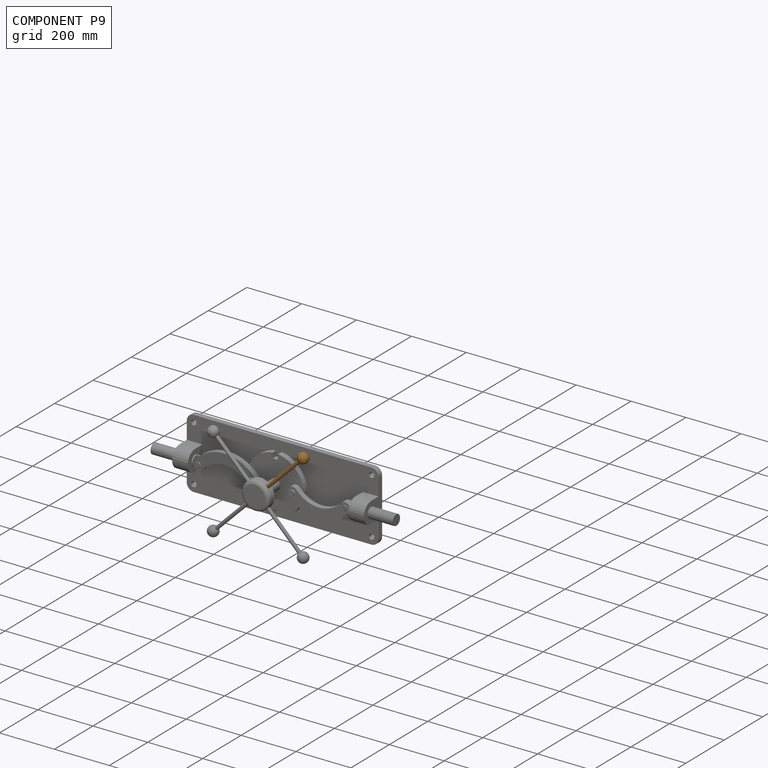
[diagram: component P9 — assembled]
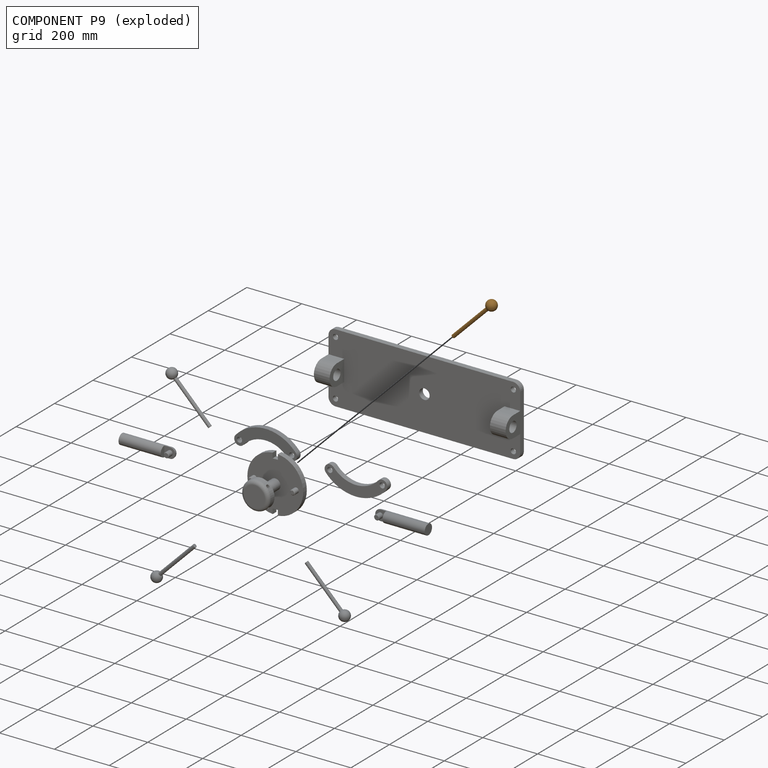
[diagram: component P9 — exploded]
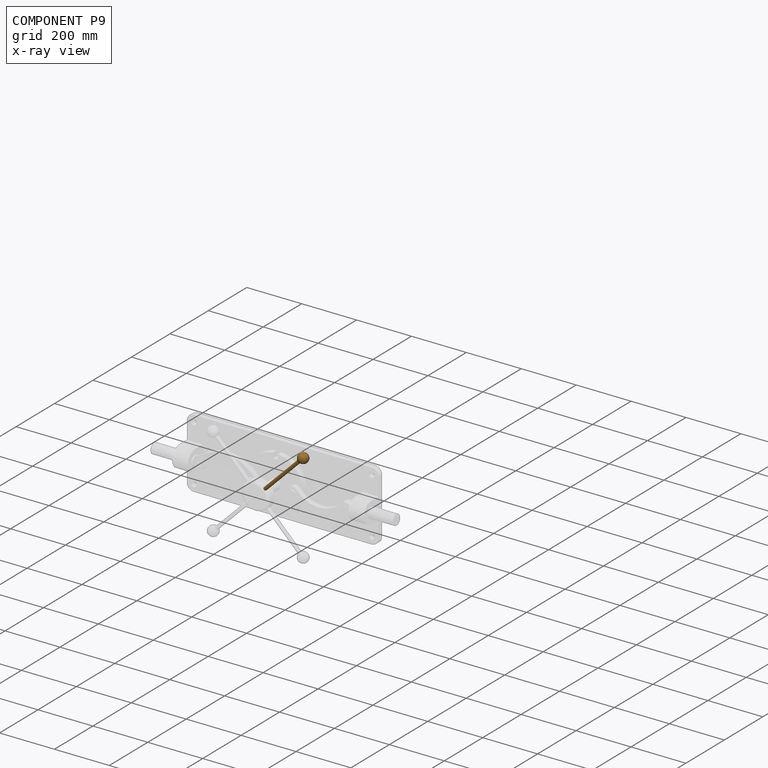
[diagram: component P9 — x-ray view]
COMPONENT P9 — geometry summary (no construction recipe available for this part):
  bounding box: 215.9 x 38.1 x 38.1 mm
  B-rep topology: 1 solid, 3 faces, 11 edges
  volume: 51550 mm^3 (16% of its bounding box)
  symmetry: revolution-symmetric about the y axis through its bounding-box center; mirror-symmetric across its x mid-plane, z mid-plane
Held by: FASTENED mate "Fastened 4" to P2.
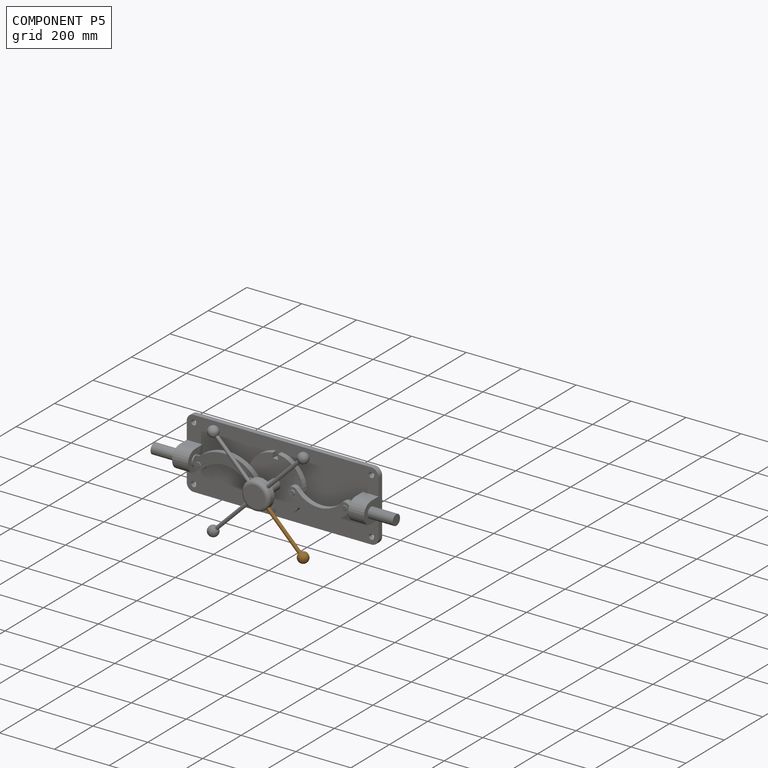
[diagram: component P5 — assembled]
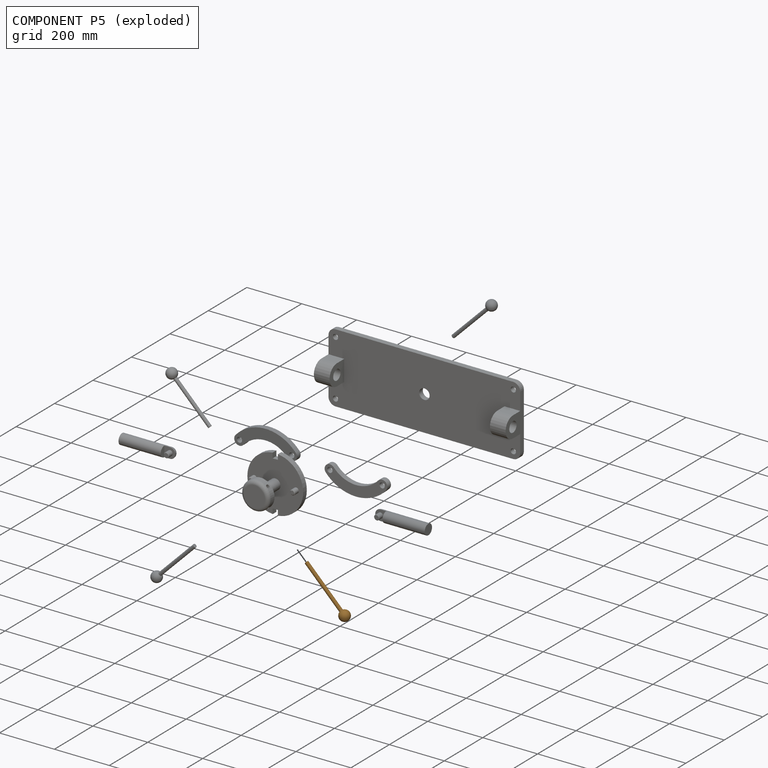
[diagram: component P5 — exploded]
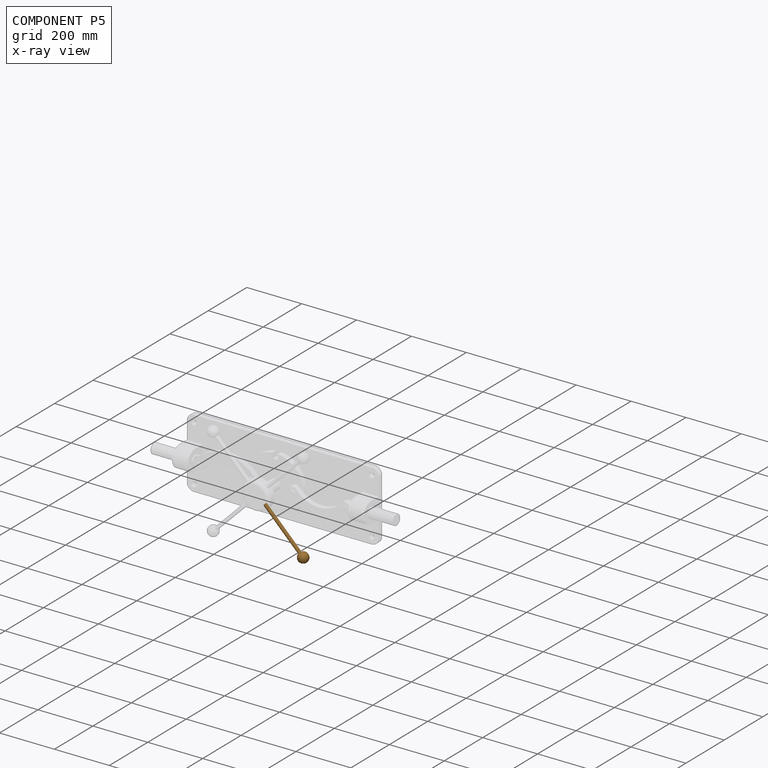
[diagram: component P5 — x-ray view]
COMPONENT P5 — geometry summary (no construction recipe available for this part):
  bounding box: 215.9 x 38.1 x 38.1 mm
  B-rep topology: 1 solid, 3 faces, 11 edges
  volume: 51550 mm^3 (16% of its bounding box)
  symmetry: revolution-symmetric about the y axis through its bounding-box center; mirror-symmetric across its x mid-plane, z mid-plane
Held by: FASTENED mate "Fastened 3" to P2.
PROVENANCE & LICENSES
Assembly (occurrences, transforms, mates, per-part STEP geometry): AutoMate dataset, Zenodo record 7776208, CC0.
Construction recipes: CADFS (HuggingFace VladPyatov/CADFS, CC-BY-4.0, layered over the ABC dataset), FeatureScript reconstruction programs keyed by ABC model id.
Join: ABC meta listings map ABC model id -> Onshape documentId; within a shared document, parts are matched by geometric signature (bounding-box dims + volume at 0.1% relative tolerance, exact B-rep face/solid counts).
Verification: 3 of this assembly's 10 components carry a recipe attachment, and every attachment is mesh-verified: the CADFS STEP and the AutoMate member STEP were compared as meshes in their shared local frame (symmetric sampled-point-to-mesh distance); worst across the 3 attachments: below the mesh-comparison resolution (tessellation chordal tolerance ~1.12 mm) on a 749 mm part.
Renders: orthographic iso camera (az 35 / el 25); the floor grid conveys scale (grid pitch printed in each image; no ruler). In the exploded view each component is displaced by its stored offset vector: the offsets alone carry the explosion direction (mate normal/axis signs are not orientation cues and do not encode it), and separation distances are assigned per mate-chain, not proportionally to assembly-order depth.
